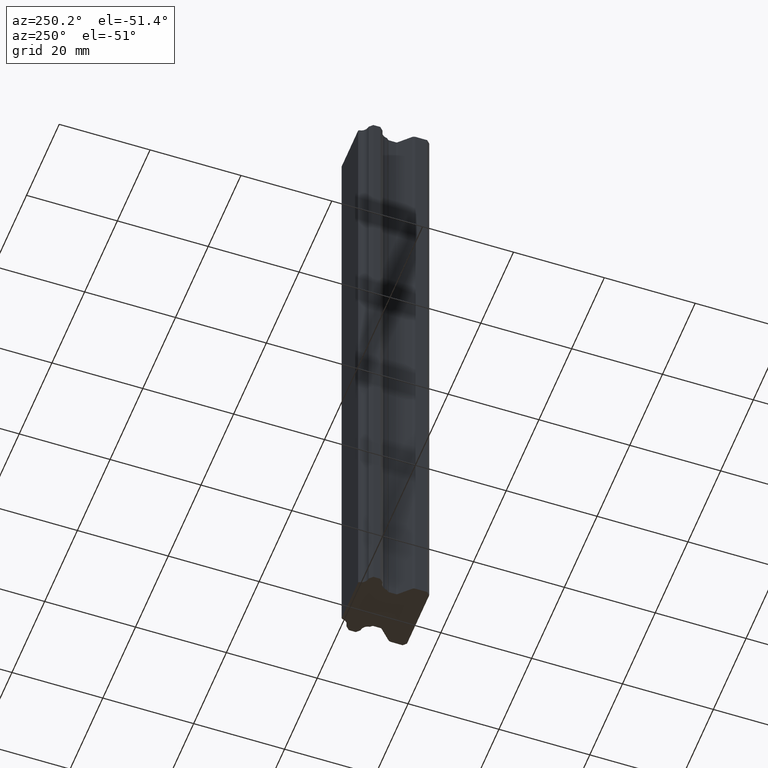
[diagram: clean part render]
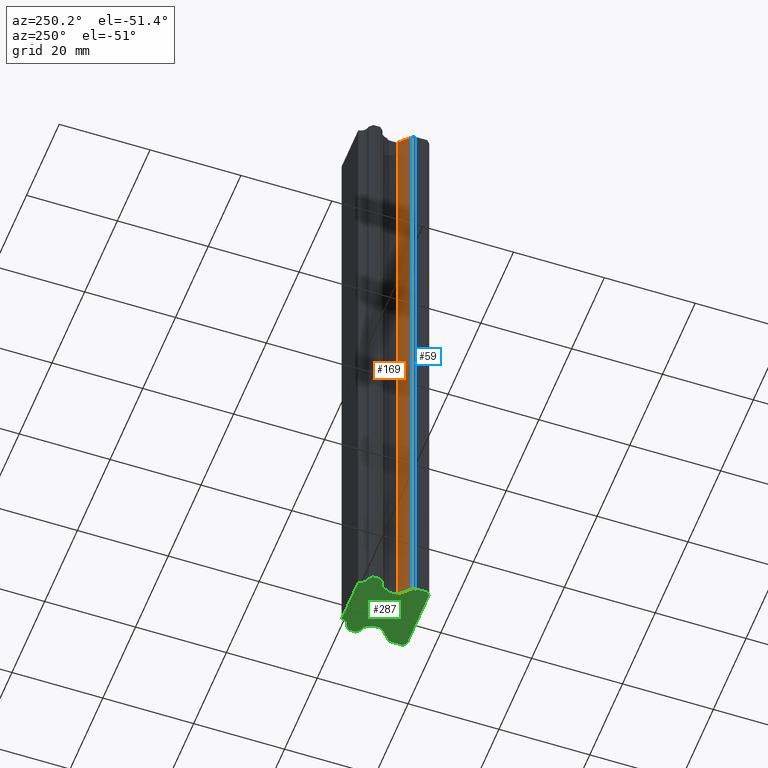
[diagram: same view with three faces highlighted in distinct colors, each labeled with its STEP entity id]
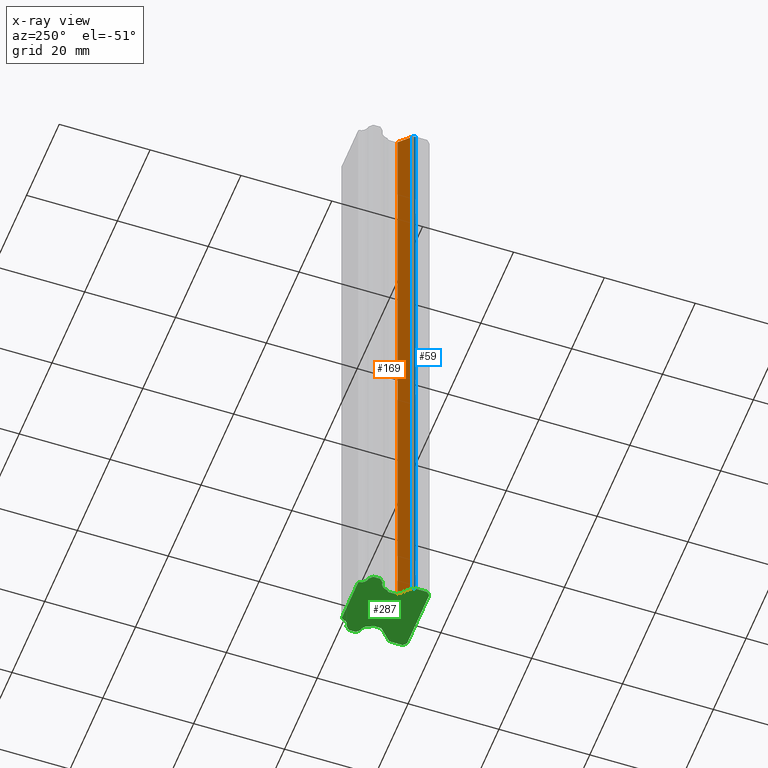
[diagram: x-ray of the same camera — body ghosted, the three highlighted faces saturated]
A machine part, auxiliary view with three faces highlighted in distinct colors.
The next image is the same camera in x-ray (body ghosted, the three faces saturated) — at least one of them is partly hidden behind the body in this view.
Their STEP definitions:

[orange] entity #169 — the highlighted planar face has unit normal (-0.7071, 0.7071, 0).
#46 = VERTEX_POINT ( 'NONE', #422 ) ;
#48 = EDGE_CURVE ( 'NONE', #1141, #46, #409, .T. ) ;
#54 = EDGE_CURVE ( 'NONE', #60, #61, #442, .T. ) ;
#60 = VERTEX_POINT ( 'NONE', #450 ) ;
#61 = VERTEX_POINT ( 'NONE', #445 ) ;
#132 = ORIENTED_EDGE ( 'NONE', *, *, #48, .T. ) ;
#145 = EDGE_LOOP ( 'NONE', ( #132, #177, #152, #153 ) ) ;
#146 = EDGE_CURVE ( 'NONE', #1141, #61, #644, .T. ) ;
#152 = ORIENTED_EDGE ( 'NONE', *, *, #54, .T. ) ;
#153 = ORIENTED_EDGE ( 'NONE', *, *, #146, .F. ) ;
#169 = ADVANCED_FACE ( 'NONE', ( #630 ), #612, .T. ) ;
#177 = ORIENTED_EDGE ( 'NONE', *, *, #178, .T. ) ;
#178 = EDGE_CURVE ( 'NONE', #46, #60, #682, .T. ) ;
#393 = CARTESIAN_POINT ( 'NONE',  ( -4.887157287517001500, -8.729583693993999900, -75.00000000000000000 ) ) ;
#409 = LINE ( 'NONE', #393, #441 ) ;
#422 = CARTESIAN_POINT ( 'NONE',  ( -4.887157287517427800, -8.729583693994426200, -75.00000000000000000 ) ) ;
#441 = VECTOR ( 'NONE', #444, 1000.000000000000000 ) ;
#442 = LINE ( 'NONE', #460, #459 ) ;
#444 = DIRECTION ( 'NONE',  ( 0.0000000000000000000, 0.0000000000000000000, -1.000000000000000000 ) ) ;
#445 = CARTESIAN_POINT ( 'NONE',  ( -7.207106781203251000, -11.04953318779036100, 75.00000000000000000 ) ) ;
#450 = CARTESIAN_POINT ( 'NONE',  ( -7.207106781203251000, -11.04953318779036100, -75.00000000000000000 ) ) ;
#458 = DIRECTION ( 'NONE',  ( 0.0000000000000000000, 0.0000000000000000000, 1.000000000000000000 ) ) ;
#459 = VECTOR ( 'NONE', #458, 1000.000000000000000 ) ;
#460 = CARTESIAN_POINT ( 'NONE',  ( -7.207106781202890400, -11.04953318779111100, -75.00000000000000000 ) ) ;
#612 = PLANE ( 'NONE',  #658 ) ;
#630 = FACE_OUTER_BOUND ( 'NONE', #145, .T. ) ;
#641 = DIRECTION ( 'NONE',  ( -0.7071067811699360800, -0.7071067812031590600, 0.0000000000000000000 ) ) ;
#642 = VECTOR ( 'NONE', #641, 1000.000000000000000 ) ;
#643 = CARTESIAN_POINT ( 'NONE',  ( -4.887157287517000600, -8.729583693993999900, 75.00000000000000000 ) ) ;
#644 = LINE ( 'NONE', #643, #642 ) ;
#658 = AXIS2_PLACEMENT_3D ( 'NONE', #678, #663, #662 ) ;
#662 = DIRECTION ( 'NONE',  ( -0.7071067811695974600, -0.7071067812034974600, 0.0000000000000000000 ) ) ;
#663 = DIRECTION ( 'NONE',  ( -0.7071067812034975700, 0.7071067811695975800, 0.0000000000000000000 ) ) ;
#671 = DIRECTION ( 'NONE',  ( -0.7071067811699360800, -0.7071067812031590600, 0.0000000000000000000 ) ) ;
#672 = VECTOR ( 'NONE', #671, 1000.000000000000000 ) ;
#673 = CARTESIAN_POINT ( 'NONE',  ( -4.887157287515999600, -8.729583693992999800, -75.00000000000000000 ) ) ;
#678 = CARTESIAN_POINT ( 'NONE',  ( -4.887157287518000700, -8.729583693995000000, -75.00000000000000000 ) ) ;
#682 = LINE ( 'NONE', #673, #672 ) ;
#1141 = VERTEX_POINT ( 'NONE', #1225 ) ;
#1225 = CARTESIAN_POINT ( 'NONE',  ( -4.887157287517427800, -8.729583693994426200, 75.00000000000001400 ) ) ;

[blue] entity #59 — the highlighted cylindrical surface (edge-blend (fillet) strip) has radius 1 mm, axis along (0, 0, 1).
#38 = EDGE_CURVE ( 'NONE', #60, #67, #428, .T. ) ;
#40 = ORIENTED_EDGE ( 'NONE', *, *, #55, .F. ) ;
#45 = ORIENTED_EDGE ( 'NONE', *, *, #38, .T. ) ;
#50 = ORIENTED_EDGE ( 'NONE', *, *, #64, .T. ) ;
#52 = VERTEX_POINT ( 'NONE', #443 ) ;
#53 = ORIENTED_EDGE ( 'NONE', *, *, #54, .F. ) ;
#54 = EDGE_CURVE ( 'NONE', #60, #61, #442, .T. ) ;
#55 = EDGE_CURVE ( 'NONE', #52, #67, #457, .T. ) ;
#59 = ADVANCED_FACE ( 'NONE', ( #455 ), #446, .T. ) ;
#60 = VERTEX_POINT ( 'NONE', #450 ) ;
#61 = VERTEX_POINT ( 'NONE', #445 ) ;
#63 = EDGE_LOOP ( 'NONE', ( #53, #45, #40, #50 ) ) ;
#64 = EDGE_CURVE ( 'NONE', #52, #61, #477, .T. ) ;
#67 = VERTEX_POINT ( 'NONE', #474 ) ;
#424 = DIRECTION ( 'NONE',  ( 1.000000000000000000, 0.0000000000000000000, 0.0000000000000000000 ) ) ;
#425 = DIRECTION ( 'NONE',  ( 0.0000000000000000000, 0.0000000000000000000, 1.000000000000000000 ) ) ;
#426 = AXIS2_PLACEMENT_3D ( 'NONE', #427, #425, #424 ) ;
#427 = CARTESIAN_POINT ( 'NONE',  ( -6.500000000000000900, -11.75663996896000000, -75.00000000000000000 ) ) ;
#428 = CIRCLE ( 'NONE', #426, 1.000000000000000000 ) ;
#442 = LINE ( 'NONE', #460, #459 ) ;
#443 = CARTESIAN_POINT ( 'NONE',  ( -7.499999996679752800, -11.75652472579038300, 75.00000000000000000 ) ) ;
#445 = CARTESIAN_POINT ( 'NONE',  ( -7.207106781203251000, -11.04953318779036100, 75.00000000000000000 ) ) ;
#446 = CYLINDRICAL_SURFACE ( 'NONE', #454, 1.000000000000000000 ) ;
#447 = DIRECTION ( 'NONE',  ( 1.000000000000000000, 0.0000000000000000000, 0.0000000000000000000 ) ) ;
#448 = DIRECTION ( 'NONE',  ( 0.0000000000000000000, 0.0000000000000000000, 1.000000000000000000 ) ) ;
#449 = CARTESIAN_POINT ( 'NONE',  ( -6.500000000000000900, -11.75663996896000000, -75.00000000000000000 ) ) ;
#450 = CARTESIAN_POINT ( 'NONE',  ( -7.207106781203251000, -11.04953318779036100, -75.00000000000000000 ) ) ;
#451 = DIRECTION ( 'NONE',  ( 0.0000000000000000000, -7.682877999994110100E-007, -0.9999999999997049000 ) ) ;
#452 = VECTOR ( 'NONE', #451, 1000.000000000000000 ) ;
#453 = CARTESIAN_POINT ( 'NONE',  ( -7.500000000000000000, -11.75652472578999900, 75.00000000000000000 ) ) ;
#454 = AXIS2_PLACEMENT_3D ( 'NONE', #449, #448, #447 ) ;
#455 = FACE_OUTER_BOUND ( 'NONE', #63, .T. ) ;
#457 = LINE ( 'NONE', #453, #452 ) ;
#458 = DIRECTION ( 'NONE',  ( 0.0000000000000000000, 0.0000000000000000000, 1.000000000000000000 ) ) ;
#459 = VECTOR ( 'NONE', #458, 1000.000000000000000 ) ;
#460 = CARTESIAN_POINT ( 'NONE',  ( -7.207106781202890400, -11.04953318779111100, -75.00000000000000000 ) ) ;
#465 = CARTESIAN_POINT ( 'NONE',  ( -6.500000000000000900, -11.75663996896000000, 75.00000000000000000 ) ) ;
#470 = DIRECTION ( 'NONE',  ( 0.0000000000000000000, 0.0000000000000000000, -1.000000000000000000 ) ) ;
#474 = CARTESIAN_POINT ( 'NONE',  ( -7.500000000000000000, -11.75663996896000000, -75.00000000000000000 ) ) ;
#475 = DIRECTION ( 'NONE',  ( 1.000000000000000000, 1.734723475976807100E-015, 0.0000000000000000000 ) ) ;
#476 = AXIS2_PLACEMENT_3D ( 'NONE', #465, #470, #475 ) ;
#477 = CIRCLE ( 'NONE', #476, 1.000000000000000000 ) ;

[green] entity #287 — the highlighted planar face has unit normal (0, 0, 1).
#2 = VERTEX_POINT ( 'NONE', #319 ) ;
#5 = VERTEX_POINT ( 'NONE', #353 ) ;
#14 = EDGE_CURVE ( 'NONE', #5, #1069, #366, .T. ) ;
#18 = EDGE_CURVE ( 'NONE', #2, #1064, #371, .T. ) ;
#26 = VERTEX_POINT ( 'NONE', #398 ) ;
#28 = EDGE_CURVE ( 'NONE', #1178, #936, #406, .T. ) ;
#34 = EDGE_CURVE ( 'NONE', #1068, #26, #408, .T. ) ;
#38 = EDGE_CURVE ( 'NONE', #60, #67, #428, .T. ) ;
#39 = EDGE_CURVE ( 'NONE', #46, #1170, #439, .T. ) ;
#46 = VERTEX_POINT ( 'NONE', #422 ) ;
#47 = VERTEX_POINT ( 'NONE', #421 ) ;
#60 = VERTEX_POINT ( 'NONE', #450 ) ;
#67 = VERTEX_POINT ( 'NONE', #474 ) ;
#73 = VERTEX_POINT ( 'NONE', #467 ) ;
#79 = EDGE_CURVE ( 'NONE', #97, #84, #484, .T. ) ;
#83 = EDGE_CURVE ( 'NONE', #1173, #73, #506, .T. ) ;
#84 = VERTEX_POINT ( 'NONE', #492 ) ;
#88 = EDGE_CURVE ( 'NONE', #1154, #47, #490, .T. ) ;
#92 = VERTEX_POINT ( 'NONE', #517 ) ;
#97 = VERTEX_POINT ( 'NONE', #544 ) ;
#111 = EDGE_CURVE ( 'NONE', #92, #1151, #576, .T. ) ;
#121 = EDGE_CURVE ( 'NONE', #1207, #1214, #570, .T. ) ;
#133 = EDGE_CURVE ( 'NONE', #26, #2, #590, .T. ) ;
#135 = EDGE_CURVE ( 'NONE', #930, #5, #602, .T. ) ;
#144 = EDGE_CURVE ( 'NONE', #936, #943, #646, .T. ) ;
#159 = VERTEX_POINT ( 'NONE', #636 ) ;
#162 = EDGE_CURVE ( 'NONE', #159, #97, #627, .T. ) ;
#165 = EDGE_CURVE ( 'NONE', #67, #175, #634, .T. ) ;
#175 = VERTEX_POINT ( 'NONE', #683 ) ;
#178 = EDGE_CURVE ( 'NONE', #46, #60, #682, .T. ) ;
#197 = EDGE_CURVE ( 'NONE', #175, #281, #711, .T. ) ;
#211 = EDGE_CURVE ( 'NONE', #222, #159, #698, .T. ) ;
#222 = VERTEX_POINT ( 'NONE', #756 ) ;
#246 = EDGE_CURVE ( 'NONE', #84, #47, #745, .T. ) ;
#253 = EDGE_CURVE ( 'NONE', #73, #92, #786, .T. ) ;
#259 = ORIENTED_EDGE ( 'NONE', *, *, #197, .F. ) ;
#260 = ORIENTED_EDGE ( 'NONE', *, *, #165, .F. ) ;
#261 = ORIENTED_EDGE ( 'NONE', *, *, #1198, .F. ) ;
#262 = ORIENTED_EDGE ( 'NONE', *, *, #79, .F. ) ;
#263 = ORIENTED_EDGE ( 'NONE', *, *, #246, .F. ) ;
#264 = ORIENTED_EDGE ( 'NONE', *, *, #253, .F. ) ;
#266 = ORIENTED_EDGE ( 'NONE', *, *, #111, .F. ) ;
#268 = EDGE_LOOP ( 'NONE', ( #264, #276, #261, #282, #283, #277, #263, #262, #269, #270, #278, #259, #260, #279, #298, #297, #271, #300, #273, #285, #291, #299, #272, #296, #288, #289, #290, #286, #301, #302, #295, #348, #294, #266 ) ) ;
#269 = ORIENTED_EDGE ( 'NONE', *, *, #162, .F. ) ;
#270 = ORIENTED_EDGE ( 'NONE', *, *, #211, .F. ) ;
#271 = ORIENTED_EDGE ( 'NONE', *, *, #1202, .F. ) ;
#272 = ORIENTED_EDGE ( 'NONE', *, *, #1054, .F. ) ;
#273 = ORIENTED_EDGE ( 'NONE', *, *, #1061, .F. ) ;
#276 = ORIENTED_EDGE ( 'NONE', *, *, #83, .F. ) ;
#277 = ORIENTED_EDGE ( 'NONE', *, *, #88, .T. ) ;
#278 = ORIENTED_EDGE ( 'NONE', *, *, #280, .F. ) ;
#279 = ORIENTED_EDGE ( 'NONE', *, *, #38, .F. ) ;
#280 = EDGE_CURVE ( 'NONE', #281, #222, #810, .T. ) ;
#281 = VERTEX_POINT ( 'NONE', #801 ) ;
#282 = ORIENTED_EDGE ( 'NONE', *, *, #1176, .T. ) ;
#283 = ORIENTED_EDGE ( 'NONE', *, *, #1185, .F. ) ;
#285 = ORIENTED_EDGE ( 'NONE', *, *, #18, .F. ) ;
#286 = ORIENTED_EDGE ( 'NONE', *, *, #144, .F. ) ;
#287 = ADVANCED_FACE ( 'NONE', ( #800 ), #799, .F. ) ;
#288 = ORIENTED_EDGE ( 'NONE', *, *, #135, .F. ) ;
#289 = ORIENTED_EDGE ( 'NONE', *, *, #929, .F. ) ;
#290 = ORIENTED_EDGE ( 'NONE', *, *, #955, .F. ) ;
#291 = ORIENTED_EDGE ( 'NONE', *, *, #133, .F. ) ;
#294 = ORIENTED_EDGE ( 'NONE', *, *, #1181, .F. ) ;
#295 = ORIENTED_EDGE ( 'NONE', *, *, #121, .F. ) ;
#296 = ORIENTED_EDGE ( 'NONE', *, *, #14, .F. ) ;
#297 = ORIENTED_EDGE ( 'NONE', *, *, #39, .T. ) ;
#298 = ORIENTED_EDGE ( 'NONE', *, *, #178, .F. ) ;
#299 = ORIENTED_EDGE ( 'NONE', *, *, #34, .F. ) ;
#300 = ORIENTED_EDGE ( 'NONE', *, *, #1132, .T. ) ;
#301 = ORIENTED_EDGE ( 'NONE', *, *, #28, .F. ) ;
#302 = ORIENTED_EDGE ( 'NONE', *, *, #1206, .F. ) ;
#319 = CARTESIAN_POINT ( 'NONE',  ( -5.216972519229236700, -6.154862703527192600, -75.00000000000000000 ) ) ;
#348 = ORIENTED_EDGE ( 'NONE', *, *, #1163, .F. ) ;
#353 = CARTESIAN_POINT ( 'NONE',  ( -6.730359224779198800, -1.681364275152408500, -75.00000000000000000 ) ) ;
#360 = DIRECTION ( 'NONE',  ( 1.000000000000000000, 0.0000000000000000000, 0.0000000000000000000 ) ) ;
#365 = CARTESIAN_POINT ( 'NONE',  ( -6.730359224778999800, -1.681364275151999900, -75.00000000000000000 ) ) ;
#366 = LINE ( 'NONE', #365, #388 ) ;
#371 = CIRCLE ( 'NONE', #390, 0.4000000000000001900 ) ;
#382 = DIRECTION ( 'NONE',  ( 1.000000000000000000, 0.0000000000000000000, 0.0000000000000000000 ) ) ;
#383 = DIRECTION ( 'NONE',  ( 0.0000000000000000000, 0.0000000000000000000, 1.000000000000000000 ) ) ;
#387 = DIRECTION ( 'NONE',  ( -0.7071067811778974900, -0.7071067811951974300, 0.0000000000000000000 ) ) ;
#388 = VECTOR ( 'NONE', #387, 1000.000000000000100 ) ;
#389 = CARTESIAN_POINT ( 'NONE',  ( -4.820354877746000400, -6.102954646309999700, -75.00000000000000000 ) ) ;
#390 = AXIS2_PLACEMENT_3D ( 'NONE', #389, #383, #382 ) ;
#394 = DIRECTION ( 'NONE',  ( 0.7071067811872975300, -0.7071067811857975100, 0.0000000000000000000 ) ) ;
#395 = VECTOR ( 'NONE', #394, 1000.000000000000000 ) ;
#398 = CARTESIAN_POINT ( 'NONE',  ( -6.741857403607335500, -4.747137545402726000, -75.00000000000000000 ) ) ;
#404 = DIRECTION ( 'NONE',  ( -0.7071067811778974900, 0.7071067811951974300, 0.0000000000000000000 ) ) ;
#405 = VECTOR ( 'NONE', #404, 1000.000000000000100 ) ;
#406 = LINE ( 'NONE', #413, #405 ) ;
#407 = CARTESIAN_POINT ( 'NONE',  ( -7.500000000000000000, -3.988994949012000000, -75.00000000000000000 ) ) ;
#408 = LINE ( 'NONE', #407, #395 ) ;
#413 = CARTESIAN_POINT ( 'NONE',  ( 5.104881891276000300, -0.05588694160838000900, -75.00000000000000000 ) ) ;
#417 = DIRECTION ( 'NONE',  ( 1.000000000000000000, 0.0000000000000000000, 0.0000000000000000000 ) ) ;
#418 = DIRECTION ( 'NONE',  ( 0.0000000000000000000, 0.0000000000000000000, 1.000000000000000000 ) ) ;
#419 = CARTESIAN_POINT ( 'NONE',  ( -5.169999999998999800, -8.446740981527000300, -75.00000000000000000 ) ) ;
#420 = AXIS2_PLACEMENT_3D ( 'NONE', #419, #418, #417 ) ;
#421 = CARTESIAN_POINT ( 'NONE',  ( 4.887157287517727200, -8.729583693992443800, -75.00000000000000000 ) ) ;
#422 = CARTESIAN_POINT ( 'NONE',  ( -4.887157287517427800, -8.729583693994426200, -75.00000000000000000 ) ) ;
#424 = DIRECTION ( 'NONE',  ( 1.000000000000000000, 0.0000000000000000000, 0.0000000000000000000 ) ) ;
#425 = DIRECTION ( 'NONE',  ( 0.0000000000000000000, 0.0000000000000000000, 1.000000000000000000 ) ) ;
#426 = AXIS2_PLACEMENT_3D ( 'NONE', #427, #425, #424 ) ;
#427 = CARTESIAN_POINT ( 'NONE',  ( -6.500000000000000900, -11.75663996896000000, -75.00000000000000000 ) ) ;
#428 = CIRCLE ( 'NONE', #426, 1.000000000000000000 ) ;
#439 = CIRCLE ( 'NONE', #420, 0.4000000000000001900 ) ;
#450 = CARTESIAN_POINT ( 'NONE',  ( -7.207106781203251000, -11.04953318779036100, -75.00000000000000000 ) ) ;
#467 = CARTESIAN_POINT ( 'NONE',  ( 5.216972520087463000, -6.154862696992599200, -75.00000000000000000 ) ) ;
#474 = CARTESIAN_POINT ( 'NONE',  ( -7.500000000000000000, -11.75663996896000000, -75.00000000000000000 ) ) ;
#478 = DIRECTION ( 'NONE',  ( 0.0000000000000000000, 0.0000000000000000000, 1.000000000000000000 ) ) ;
#479 = CARTESIAN_POINT ( 'NONE',  ( 6.500000000002001100, -11.75663996896000000, -75.00000000000000000 ) ) ;
#480 = AXIS2_PLACEMENT_3D ( 'NONE', #479, #478, #360 ) ;
#484 = CIRCLE ( 'NONE', #480, 1.000000000000000000 ) ;
#490 = CIRCLE ( 'NONE', #500, 0.4000000000000001900 ) ;
#492 = CARTESIAN_POINT ( 'NONE',  ( 7.207106781204784900, -11.04953318779078400, -75.00000000000000000 ) ) ;
#497 = DIRECTION ( 'NONE',  ( 1.000000000000000000, 0.0000000000000000000, 0.0000000000000000000 ) ) ;
#498 = DIRECTION ( 'NONE',  ( 0.0000000000000000000, 0.0000000000000000000, 1.000000000000000000 ) ) ;
#499 = CARTESIAN_POINT ( 'NONE',  ( 5.169999999999999900, -8.446740981527000300, -75.00000000000000000 ) ) ;
#500 = AXIS2_PLACEMENT_3D ( 'NONE', #499, #498, #497 ) ;
#502 = DIRECTION ( 'NONE',  ( 1.000000000000000000, 0.0000000000000000000, 0.0000000000000000000 ) ) ;
#503 = DIRECTION ( 'NONE',  ( 0.0000000000000000000, 0.0000000000000000000, 1.000000000000000000 ) ) ;
#504 = CARTESIAN_POINT ( 'NONE',  ( 4.820354877748999700, -6.102954646309999700, -75.00000000000000000 ) ) ;
#505 = AXIS2_PLACEMENT_3D ( 'NONE', #504, #503, #502 ) ;
#506 = CIRCLE ( 'NONE', #505, 0.4000000000000001900 ) ;
#517 = CARTESIAN_POINT ( 'NONE',  ( 6.741857403609103000, -4.747137545402787300, -75.00000000000000000 ) ) ;
#544 = CARTESIAN_POINT ( 'NONE',  ( 7.500000000001227500, -11.75663996896000000, -75.00000000000000000 ) ) ;
#561 = DIRECTION ( 'NONE',  ( 0.7071067811872975300, 0.7071067811857975100, 0.0000000000000000000 ) ) ;
#562 = VECTOR ( 'NONE', #561, 1000.000000000000000 ) ;
#563 = CARTESIAN_POINT ( 'NONE',  ( 6.741857403609000000, -4.747137545402999600, -75.00000000000000000 ) ) ;
#566 = DIRECTION ( 'NONE',  ( 1.000000000000000000, 0.0000000000000000000, 0.0000000000000000000 ) ) ;
#567 = DIRECTION ( 'NONE',  ( 0.0000000000000000000, 0.0000000000000000000, -1.000000000000000000 ) ) ;
#568 = CARTESIAN_POINT ( 'NONE',  ( 6.823273962873000400, -0.06403102209491999500, -75.00000000000000000 ) ) ;
#569 = AXIS2_PLACEMENT_3D ( 'NONE', #568, #567, #566 ) ;
#570 = CIRCLE ( 'NONE', #569, 1.620000000000000800 ) ;
#576 = LINE ( 'NONE', #563, #562 ) ;
#588 = CARTESIAN_POINT ( 'NONE',  ( -6.823273962870000100, -6.365090370387999700, -75.00000000000000000 ) ) ;
#589 = AXIS2_PLACEMENT_3D ( 'NONE', #588, #605, #604 ) ;
#590 = CIRCLE ( 'NONE', #589, 1.619999999999999900 ) ;
#598 = DIRECTION ( 'NONE',  ( 1.000000000000000000, 0.0000000000000000000, 0.0000000000000000000 ) ) ;
#599 = DIRECTION ( 'NONE',  ( 0.0000000000000000000, 0.0000000000000000000, -1.000000000000000000 ) ) ;
#600 = CARTESIAN_POINT ( 'NONE',  ( -6.823273962870000100, -0.06403102209491999500, -75.00000000000000000 ) ) ;
#601 = AXIS2_PLACEMENT_3D ( 'NONE', #600, #599, #598 ) ;
#602 = CIRCLE ( 'NONE', #601, 1.619999999999999900 ) ;
#604 = DIRECTION ( 'NONE',  ( 1.000000000000000000, 0.0000000000000000000, 0.0000000000000000000 ) ) ;
#605 = DIRECTION ( 'NONE',  ( 0.0000000000000000000, 0.0000000000000000000, -1.000000000000000000 ) ) ;
#624 = DIRECTION ( 'NONE',  ( 0.0000000000000000000, 1.000000000000000000, 0.0000000000000000000 ) ) ;
#625 = VECTOR ( 'NONE', #624, 1000.000000000000000 ) ;
#626 = CARTESIAN_POINT ( 'NONE',  ( 7.500000000001001000, 0.0000000000000000000, -75.00000000000000000 ) ) ;
#627 = LINE ( 'NONE', #626, #625 ) ;
#628 = DIRECTION ( 'NONE',  ( -1.000000000000000000, 0.0000000000000000000, 0.0000000000000000000 ) ) ;
#629 = VECTOR ( 'NONE', #628, 1000.000000000000000 ) ;
#631 = DIRECTION ( 'NONE',  ( 0.0000000000000000000, -1.000000000000000000, 0.0000000000000000000 ) ) ;
#632 = VECTOR ( 'NONE', #631, 1000.000000000000000 ) ;
#633 = CARTESIAN_POINT ( 'NONE',  ( -7.500000000000000000, 0.0000000000000000000, -75.00000000000000000 ) ) ;
#634 = LINE ( 'NONE', #633, #632 ) ;
#636 = CARTESIAN_POINT ( 'NONE',  ( 7.500000000001001000, -14.30000000000000100, -74.99999999999998600 ) ) ;
#645 = CARTESIAN_POINT ( 'NONE',  ( 0.0000000000000000000, -6.520478601501999900E-014, -75.00000000000000000 ) ) ;
#646 = LINE ( 'NONE', #645, #629 ) ;
#671 = DIRECTION ( 'NONE',  ( -0.7071067811699360800, -0.7071067812031590600, 0.0000000000000000000 ) ) ;
#672 = VECTOR ( 'NONE', #671, 1000.000000000000000 ) ;
#673 = CARTESIAN_POINT ( 'NONE',  ( -4.887157287515999600, -8.729583693992999800, -75.00000000000000000 ) ) ;
#682 = LINE ( 'NONE', #673, #672 ) ;
#683 = CARTESIAN_POINT ( 'NONE',  ( -7.499999999999665200, -14.29999999999933600, -74.99999999999998600 ) ) ;
#698 = LINE ( 'NONE', #699, #708 ) ;
#699 = CARTESIAN_POINT ( 'NONE',  ( 6.800000000000999900, -15.00000000000000000, -75.00000000000000000 ) ) ;
#707 = DIRECTION ( 'NONE',  ( 0.7071067811865483500, 0.7071067811865466800, 0.0000000000000000000 ) ) ;
#708 = VECTOR ( 'NONE', #707, 1000.000000000000000 ) ;
#711 = LINE ( 'NONE', #714, #713 ) ;
#712 = DIRECTION ( 'NONE',  ( 0.7071067811865479100, -0.7071067811865470200, 0.0000000000000000000 ) ) ;
#713 = VECTOR ( 'NONE', #712, 1000.000000000000100 ) ;
#714 = CARTESIAN_POINT ( 'NONE',  ( -7.499999999998999900, -14.30000000000000100, -75.00000000000000000 ) ) ;
#737 = DIRECTION ( 'NONE',  ( -0.7071067811694787800, 0.7071067812036162500, 0.0000000000000000000 ) ) ;
#738 = VECTOR ( 'NONE', #737, 1000.000000000000000 ) ;
#739 = CARTESIAN_POINT ( 'NONE',  ( 7.207106781202999600, -11.04953318779000100, -75.00000000000000000 ) ) ;
#745 = LINE ( 'NONE', #739, #738 ) ;
#756 = CARTESIAN_POINT ( 'NONE',  ( 6.800000000001000800, -15.00000000000000000, -75.00000000000000000 ) ) ;
#777 = DIRECTION ( 'NONE',  ( 1.000000000000000000, 0.0000000000000000000, 0.0000000000000000000 ) ) ;
#778 = DIRECTION ( 'NONE',  ( 0.0000000000000000000, 0.0000000000000000000, -1.000000000000000000 ) ) ;
#779 = CARTESIAN_POINT ( 'NONE',  ( 6.823273962873000400, -6.365090370387999700, -75.00000000000000000 ) ) ;
#780 = AXIS2_PLACEMENT_3D ( 'NONE', #779, #778, #777 ) ;
#786 = CIRCLE ( 'NONE', #780, 1.620000000000000800 ) ;
#799 = PLANE ( 'NONE',  #815 ) ;
#800 = FACE_OUTER_BOUND ( 'NONE', #268, .T. ) ;
#801 = CARTESIAN_POINT ( 'NONE',  ( -6.799999999998999700, -15.00000000000000000, -75.00000000000000000 ) ) ;
#802 = DIRECTION ( 'NONE',  ( 1.000000000000000000, 0.0000000000000000000, 0.0000000000000000000 ) ) ;
#805 = CARTESIAN_POINT ( 'NONE',  ( -6.799999999998999700, -15.00000000000000000, -75.00000000000000000 ) ) ;
#810 = LINE ( 'NONE', #805, #816 ) ;
#812 = DIRECTION ( 'NONE',  ( 1.000000000000000000, 0.0000000000000000000, 0.0000000000000000000 ) ) ;
#813 = DIRECTION ( 'NONE',  ( 0.0000000000000000000, 0.0000000000000000000, 1.000000000000000000 ) ) ;
#814 = CARTESIAN_POINT ( 'NONE',  ( 0.0000000000000000000, 0.0000000000000000000, -75.00000000000000000 ) ) ;
#815 = AXIS2_PLACEMENT_3D ( 'NONE', #814, #813, #812 ) ;
#816 = VECTOR ( 'NONE', #802, 1000.000000000000000 ) ;
#828 = CARTESIAN_POINT ( 'NONE',  ( -5.218323296272211000, -0.2843338989368385800, -75.00000000000000000 ) ) ;
#829 = DIRECTION ( 'NONE',  ( 1.000000000000000000, 0.0000000000000000000, 0.0000000000000000000 ) ) ;
#830 = DIRECTION ( 'NONE',  ( 0.0000000000000000000, 0.0000000000000000000, 1.000000000000000000 ) ) ;
#832 = AXIS2_PLACEMENT_3D ( 'NONE', #839, #830, #829 ) ;
#833 = CIRCLE ( 'NONE', #832, 0.4000000000000001900 ) ;
#839 = CARTESIAN_POINT ( 'NONE',  ( -4.822039178797999700, -0.3387296540820000100, -75.00000000000000000 ) ) ;
#862 = CARTESIAN_POINT ( 'NONE',  ( -5.048994949668077900, 4.094549090277969900E-014, -75.00000000000000000 ) ) ;
#864 = DIRECTION ( 'NONE',  ( -0.7071067811778974900, -0.7071067811951974300, 0.0000000000000000000 ) ) ;
#865 = VECTOR ( 'NONE', #864, 1000.000000000000100 ) ;
#866 = CARTESIAN_POINT ( 'NONE',  ( -5.048994949667999800, 2.274000000000000200E-013, -75.00000000000000000 ) ) ;
#871 = CARTESIAN_POINT ( 'NONE',  ( 5.048994949669046900, -5.891961181100913200E-014, -75.00000000000000000 ) ) ;
#879 = LINE ( 'NONE', #866, #865 ) ;
#881 = CARTESIAN_POINT ( 'NONE',  ( -5.104881891273174200, -0.05588694160712535900, -75.00000000000000000 ) ) ;
#891 = DIRECTION ( 'NONE',  ( 0.7071067811872975300, -0.7071067811857975100, 0.0000000000000000000 ) ) ;
#892 = VECTOR ( 'NONE', #891, 1000.000000000000000 ) ;
#897 = CARTESIAN_POINT ( 'NONE',  ( -5.103197590220999800, -6.385797358785000100, -75.00000000000000000 ) ) ;
#898 = LINE ( 'NONE', #897, #892 ) ;
#916 = DIRECTION ( 'NONE',  ( 0.0000000000000000000, -1.000000000000000000, 0.0000000000000000000 ) ) ;
#917 = VECTOR ( 'NONE', #916, 1000.000000000000000 ) ;
#918 = CARTESIAN_POINT ( 'NONE',  ( -7.500000000000000000, -2.451005050391999800, -75.00000000000000000 ) ) ;
#919 = LINE ( 'NONE', #918, #917 ) ;
#929 = EDGE_CURVE ( 'NONE', #948, #930, #833, .T. ) ;
#930 = VERTEX_POINT ( 'NONE', #828 ) ;
#936 = VERTEX_POINT ( 'NONE', #871 ) ;
#943 = VERTEX_POINT ( 'NONE', #862 ) ;
#948 = VERTEX_POINT ( 'NONE', #881 ) ;
#955 = EDGE_CURVE ( 'NONE', #943, #948, #879, .T. ) ;
#960 = CARTESIAN_POINT ( 'NONE',  ( -5.103197590215910600, -6.385797358789710100, -75.00000000000000000 ) ) ;
#963 = CARTESIAN_POINT ( 'NONE',  ( -7.500000000000056000, -2.451005050391942900, -74.99999999999998600 ) ) ;
#964 = CARTESIAN_POINT ( 'NONE',  ( -7.500000000000000000, -3.988994949012000000, -74.99999999999998600 ) ) ;
#977 = CARTESIAN_POINT ( 'NONE',  ( 4.887157287525401000, -6.601837661481599900, -75.00000000000000000 ) ) ;
#985 = CARTESIAN_POINT ( 'NONE',  ( -4.887157287522922100, -6.601837661482620400, -75.00000000000000000 ) ) ;
#1005 = CARTESIAN_POINT ( 'NONE',  ( -4.769999999999000400, -6.884680373954000600, -75.00000000000000000 ) ) ;
#1054 = EDGE_CURVE ( 'NONE', #1069, #1068, #919, .T. ) ;
#1061 = EDGE_CURVE ( 'NONE', #1064, #1078, #898, .T. ) ;
#1064 = VERTEX_POINT ( 'NONE', #960 ) ;
#1068 = VERTEX_POINT ( 'NONE', #964 ) ;
#1069 = VERTEX_POINT ( 'NONE', #963 ) ;
#1072 = VERTEX_POINT ( 'NONE', #977 ) ;
#1078 = VERTEX_POINT ( 'NONE', #985 ) ;
#1086 = VERTEX_POINT ( 'NONE', #1005 ) ;
#1132 = EDGE_CURVE ( 'NONE', #1086, #1078, #1492, .T. ) ;
#1151 = VERTEX_POINT ( 'NONE', #1242 ) ;
#1154 = VERTEX_POINT ( 'NONE', #1260 ) ;
#1163 = EDGE_CURVE ( 'NONE', #1212, #1207, #1247, .T. ) ;
#1166 = VERTEX_POINT ( 'NONE', #1258 ) ;
#1170 = VERTEX_POINT ( 'NONE', #1262 ) ;
#1173 = VERTEX_POINT ( 'NONE', #1261 ) ;
#1176 = EDGE_CURVE ( 'NONE', #1072, #1166, #1275, .T. ) ;
#1178 = VERTEX_POINT ( 'NONE', #1270 ) ;
#1181 = EDGE_CURVE ( 'NONE', #1151, #1212, #1227, .T. ) ;
#1185 = EDGE_CURVE ( 'NONE', #1154, #1166, #1329, .T. ) ;
#1198 = EDGE_CURVE ( 'NONE', #1072, #1173, #1298, .T. ) ;
#1202 = EDGE_CURVE ( 'NONE', #1086, #1170, #1352, .T. ) ;
#1206 = EDGE_CURVE ( 'NONE', #1214, #1178, #1358, .T. ) ;
#1207 = VERTEX_POINT ( 'NONE', #1342 ) ;
#1212 = VERTEX_POINT ( 'NONE', #1340 ) ;
#1214 = VERTEX_POINT ( 'NONE', #1336 ) ;
#1227 = LINE ( 'NONE', #1325, #1293 ) ;
#1242 = CARTESIAN_POINT ( 'NONE',  ( 7.500000000001201700, -3.988994949012202100, -74.99999999999998600 ) ) ;
#1247 = LINE ( 'NONE', #1251, #1250 ) ;
#1249 = DIRECTION ( 'NONE',  ( -0.7071067811778974900, 0.7071067811951974300, 0.0000000000000000000 ) ) ;
#1250 = VECTOR ( 'NONE', #1249, 1000.000000000000100 ) ;
#1251 = CARTESIAN_POINT ( 'NONE',  ( 7.500000000001001000, -2.451005050391999800, -75.00000000000000000 ) ) ;
#1258 = CARTESIAN_POINT ( 'NONE',  ( 4.769999999999999600, -6.884680373956999900, -75.00000000000000000 ) ) ;
#1260 = CARTESIAN_POINT ( 'NONE',  ( 4.769999999999999600, -8.446740981527000300, -75.00000000000000000 ) ) ;
#1261 = CARTESIAN_POINT ( 'NONE',  ( 5.103197590222523900, -6.385797358785324300, -75.00000000000000000 ) ) ;
#1262 = CARTESIAN_POINT ( 'NONE',  ( -4.769999999999000400, -8.446740981527000300, -75.00000000000000000 ) ) ;
#1270 = CARTESIAN_POINT ( 'NONE',  ( 5.104881891277409900, -0.05588694160979003300, -75.00000000000000000 ) ) ;
#1271 = DIRECTION ( 'NONE',  ( 1.000000000000000000, 0.0000000000000000000, 0.0000000000000000000 ) ) ;
#1272 = DIRECTION ( 'NONE',  ( 0.0000000000000000000, 0.0000000000000000000, 1.000000000000000000 ) ) ;
#1273 = CARTESIAN_POINT ( 'NONE',  ( 5.169999999999999900, -6.884680373956999900, -75.00000000000000000 ) ) ;
#1274 = AXIS2_PLACEMENT_3D ( 'NONE', #1273, #1272, #1271 ) ;
#1275 = CIRCLE ( 'NONE', #1274, 0.4000000000000001900 ) ;
#1292 = DIRECTION ( 'NONE',  ( 0.0000000000000000000, 1.000000000000000000, 0.0000000000000000000 ) ) ;
#1293 = VECTOR ( 'NONE', #1292, 1000.000000000000000 ) ;
#1298 = LINE ( 'NONE', #1318, #1317 ) ;
#1316 = DIRECTION ( 'NONE',  ( 0.7071067811872975300, 0.7071067811857975100, 0.0000000000000000000 ) ) ;
#1317 = VECTOR ( 'NONE', #1316, 1000.000000000000000 ) ;
#1318 = CARTESIAN_POINT ( 'NONE',  ( 4.887157287524999600, -6.601837661481999600, -75.00000000000000000 ) ) ;
#1325 = CARTESIAN_POINT ( 'NONE',  ( 7.500000000001001000, -3.988994949012000000, -75.00000000000000000 ) ) ;
#1326 = DIRECTION ( 'NONE',  ( 0.0000000000000000000, 1.000000000000000000, 0.0000000000000000000 ) ) ;
#1327 = VECTOR ( 'NONE', #1326, 1000.000000000000000 ) ;
#1328 = CARTESIAN_POINT ( 'NONE',  ( 4.769999999999999600, -8.446740981527000300, -75.00000000000000000 ) ) ;
#1329 = LINE ( 'NONE', #1328, #1327 ) ;
#1336 = CARTESIAN_POINT ( 'NONE',  ( 5.218323295373505900, -0.2843338923677325400, -75.00000000000000000 ) ) ;
#1340 = CARTESIAN_POINT ( 'NONE',  ( 7.500000000001001000, -2.451005050391999800, -74.99999999999998600 ) ) ;
#1342 = CARTESIAN_POINT ( 'NONE',  ( 6.730359224780052300, -1.681364275152285300, -75.00000000000000000 ) ) ;
#1352 = LINE ( 'NONE', #1364, #1363 ) ;
#1354 = DIRECTION ( 'NONE',  ( 1.000000000000000000, 0.0000000000000000000, 0.0000000000000000000 ) ) ;
#1355 = DIRECTION ( 'NONE',  ( 0.0000000000000000000, 0.0000000000000000000, 1.000000000000000000 ) ) ;
#1356 = CARTESIAN_POINT ( 'NONE',  ( 4.822039178801000000, -0.3387296540820000100, -75.00000000000000000 ) ) ;
#1357 = AXIS2_PLACEMENT_3D ( 'NONE', #1356, #1355, #1354 ) ;
#1358 = CIRCLE ( 'NONE', #1357, 0.4000000000000001900 ) ;
#1362 = DIRECTION ( 'NONE',  ( 0.0000000000000000000, -1.000000000000000000, 0.0000000000000000000 ) ) ;
#1363 = VECTOR ( 'NONE', #1362, 1000.000000000000000 ) ;
#1364 = CARTESIAN_POINT ( 'NONE',  ( -4.769999999999000400, -6.884680373955999900, -75.00000000000000000 ) ) ;
#1481 = DIRECTION ( 'NONE',  ( 1.000000000000000000, 0.0000000000000000000, 0.0000000000000000000 ) ) ;
#1482 = DIRECTION ( 'NONE',  ( 0.0000000000000000000, 0.0000000000000000000, 1.000000000000000000 ) ) ;
#1483 = CARTESIAN_POINT ( 'NONE',  ( -5.169999999997999800, -6.884680373956999900, -75.00000000000000000 ) ) ;
#1484 = AXIS2_PLACEMENT_3D ( 'NONE', #1483, #1482, #1481 ) ;
#1492 = CIRCLE ( 'NONE', #1484, 0.4000000000000001900 ) ;